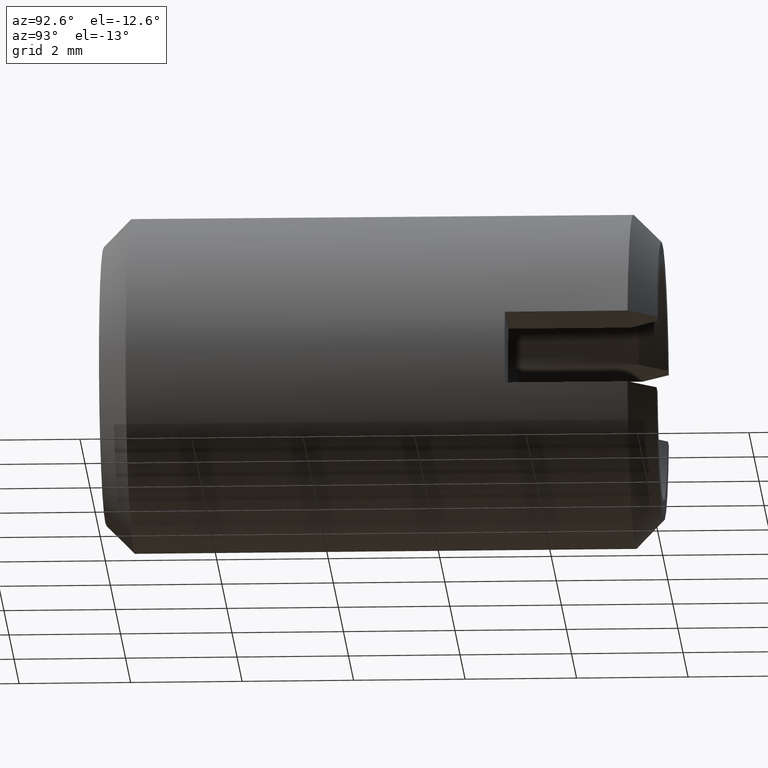
[diagram: clean part render]
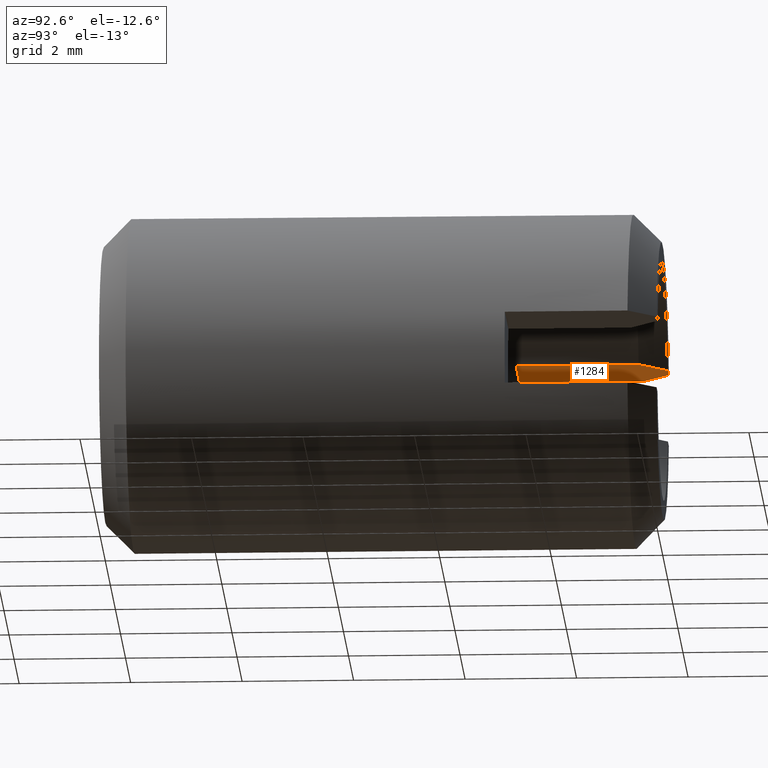
[diagram: same view with one face highlighted and labeled with its STEP entity id]
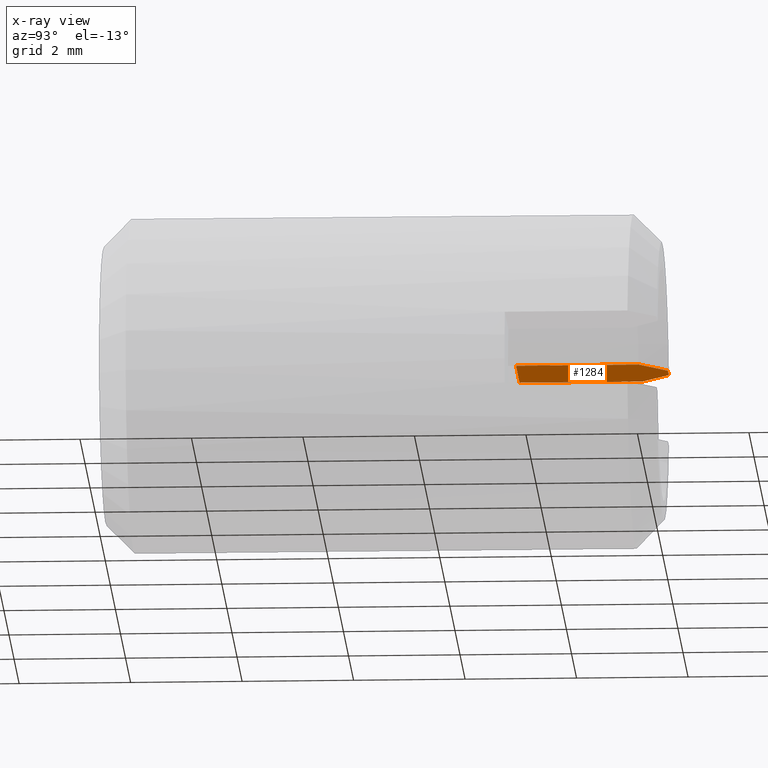
[diagram: x-ray of the same camera — body ghosted, the highlighted face saturated]
A machine part, auxiliary view. The second image highlights one B-rep face of the part: STEP entity #1284.
The next image is the same camera in x-ray: the body ghosted, the highlighted face saturated — about 3% of this face is hidden behind the body in this view.
In plain terms, the highlighted planar face has unit normal (0, 0, 1).
Its self-contained STEP definition (entity closure, byte-faithful):
#313 = FACE_OUTER_BOUND ( 'NONE', #9859, .T. ) ;
#482 = CARTESIAN_POINT ( 'NONE',  ( 12.50000000000000400, 7.299999999999999800, 0.6499999999999986900 ) ) ;
#660 = CARTESIAN_POINT ( 'NONE',  ( -2.928736929121494200, 9.500000000000000000, 0.6500000000000004700 ) ) ;
#1284 = ADVANCED_FACE ( 'NONE', ( #313 ), #6450, .F. ) ;
#1311 = VERTEX_POINT ( 'NONE', #13951 ) ;
#1442 = EDGE_CURVE ( 'NONE', #1311, #2469, #7314, .T. ) ;
#2115 = CARTESIAN_POINT ( 'NONE',  ( -2.928736929121493700, 0.0000000000000000000, 0.6500000000000002400 ) ) ;
#2270 = EDGE_CURVE ( 'NONE', #10755, #9831, #3438, .T. ) ;
#2469 = VERTEX_POINT ( 'NONE', #15617 ) ;
#2806 = ORIENTED_EDGE ( 'NONE', *, *, #8891, .T. ) ;
#2890 = CARTESIAN_POINT ( 'NONE',  ( -1.516575088810305100, 9.500000000000000000, 0.6500000000000001300 ) ) ;
#3262 = ORIENTED_EDGE ( 'NONE', *, *, #5742, .T. ) ;
#3438 = B_SPLINE_CURVE_WITH_KNOTS ( 'NONE', 3,
 ( #4055, #8897, #4208, #2890 ),
 .UNSPECIFIED., .F., .F.,
 ( 4, 4 ),
 ( 0.0000000000000000000, 0.0007306790628121099300 ),
 .UNSPECIFIED. ) ;
#3937 = ORIENTED_EDGE ( 'NONE', *, *, #2270, .T. ) ;
#3960 = VECTOR ( 'NONE', #14338, 1000.000000000000000 ) ;
#4055 = CARTESIAN_POINT ( 'NONE',  ( -2.049390153191918500, 10.00000000000000000, 0.6500000000000003600 ) ) ;
#4059 = VECTOR ( 'NONE', #14319, 1000.000000000000000 ) ;
#4208 = CARTESIAN_POINT ( 'NONE',  ( -1.695895357052979100, 9.664819788930671500, 0.6500000000000003600 ) ) ;
#4468 = AXIS2_PLACEMENT_3D ( 'NONE', #482, #13604, #14913 ) ;
#4602 = CARTESIAN_POINT ( 'NONE',  ( -2.049390153191918500, 10.00000000000000000, 0.6500000000000003600 ) ) ;
#5125 = LINE ( 'NONE', #7396, #5903 ) ;
#5415 = VECTOR ( 'NONE', #11260, 1000.000000000000000 ) ;
#5742 = EDGE_CURVE ( 'NONE', #2469, #11696, #12481, .T. ) ;
#5824 = LINE ( 'NONE', #14687, #5415 ) ;
#5903 = VECTOR ( 'NONE', #13341, 1000.000000000000000 ) ;
#6450 = PLANE ( 'NONE',  #4468 ) ;
#7314 = LINE ( 'NONE', #2115, #4059 ) ;
#7396 = CARTESIAN_POINT ( 'NONE',  ( -1.516575088810305100, 10.00000000000000000, 0.6500000000000001300 ) ) ;
#7847 = CARTESIAN_POINT ( 'NONE',  ( 12.50000000000000400, 7.299999999999999800, 0.6499999999999986900 ) ) ;
#8891 = EDGE_CURVE ( 'NONE', #9831, #14869, #5125, .T. ) ;
#8897 = CARTESIAN_POINT ( 'NONE',  ( -1.873091889638334200, 9.831951662627187000, 0.6500000000000003600 ) ) ;
#9283 = CARTESIAN_POINT ( 'NONE',  ( -2.757578815405588000, 9.667092362786181800, 0.6500000000000004700 ) ) ;
#9287 = CARTESIAN_POINT ( 'NONE',  ( -1.516575088810305100, 9.500000000000000000, 0.6500000000000001300 ) ) ;
#9831 = VERTEX_POINT ( 'NONE', #9287 ) ;
#9859 = EDGE_LOOP ( 'NONE', ( #13047, #3937, #2806, #11045, #12346, #3262 ) ) ;
#9905 = CARTESIAN_POINT ( 'NONE',  ( -1.516575088810305300, 7.299999999999999800, 0.6500000000000003600 ) ) ;
#10169 = EDGE_CURVE ( 'NONE', #1311, #14869, #13293, .T. ) ;
#10755 = VERTEX_POINT ( 'NONE', #4602 ) ;
#11045 = ORIENTED_EDGE ( 'NONE', *, *, #10169, .F. ) ;
#11260 = DIRECTION ( 'NONE',  ( 1.000000000000000000, -0.0000000000000000000, -1.214306433183765000E-016 ) ) ;
#11630 = CARTESIAN_POINT ( 'NONE',  ( -2.586092403099344000, 9.833846892848965700, 0.6500000000000004700 ) ) ;
#11696 = VERTEX_POINT ( 'NONE', #15644 ) ;
#12346 = ORIENTED_EDGE ( 'NONE', *, *, #1442, .T. ) ;
#12481 = B_SPLINE_CURVE_WITH_KNOTS ( 'NONE', 3,
 ( #660, #9283, #11630, #15318 ),
 .UNSPECIFIED., .F., .F.,
 ( 4, 4 ),
 ( 0.005136716158415992500, 0.005854303722699029000 ),
 .UNSPECIFIED. ) ;
#13047 = ORIENTED_EDGE ( 'NONE', *, *, #14093, .T. ) ;
#13293 = LINE ( 'NONE', #7847, #3960 ) ;
#13341 = DIRECTION ( 'NONE',  ( 0.0000000000000000000, -1.000000000000000000, 0.0000000000000000000 ) ) ;
#13604 = DIRECTION ( 'NONE',  ( 1.214306433183765000E-016, 0.0000000000000000000, 1.000000000000000000 ) ) ;
#13951 = CARTESIAN_POINT ( 'NONE',  ( -2.928736929121494200, 7.299999999999999800, 0.6500000000000004700 ) ) ;
#14093 = EDGE_CURVE ( 'NONE', #11696, #10755, #5824, .T. ) ;
#14319 = DIRECTION ( 'NONE',  ( 0.0000000000000000000, 1.000000000000000000, 0.0000000000000000000 ) ) ;
#14338 = DIRECTION ( 'NONE',  ( 1.000000000000000000, -0.0000000000000000000, -1.214306433183765000E-016 ) ) ;
#14687 = CARTESIAN_POINT ( 'NONE',  ( 12.50000000000000400, 10.00000000000000000, 0.6499999999999986900 ) ) ;
#14869 = VERTEX_POINT ( 'NONE', #9905 ) ;
#14913 = DIRECTION ( 'NONE',  ( 1.000000000000000000, 0.0000000000000000000, -1.214306433183765000E-016 ) ) ;
#15318 = CARTESIAN_POINT ( 'NONE',  ( -2.414021540914660100, 10.00000000000000000, 0.6500000000000004700 ) ) ;
#15617 = CARTESIAN_POINT ( 'NONE',  ( -2.928736929121494200, 9.500000000000000000, 0.6500000000000004700 ) ) ;
#15644 = CARTESIAN_POINT ( 'NONE',  ( -2.414021540914660100, 10.00000000000000000, 0.6500000000000004700 ) ) ;